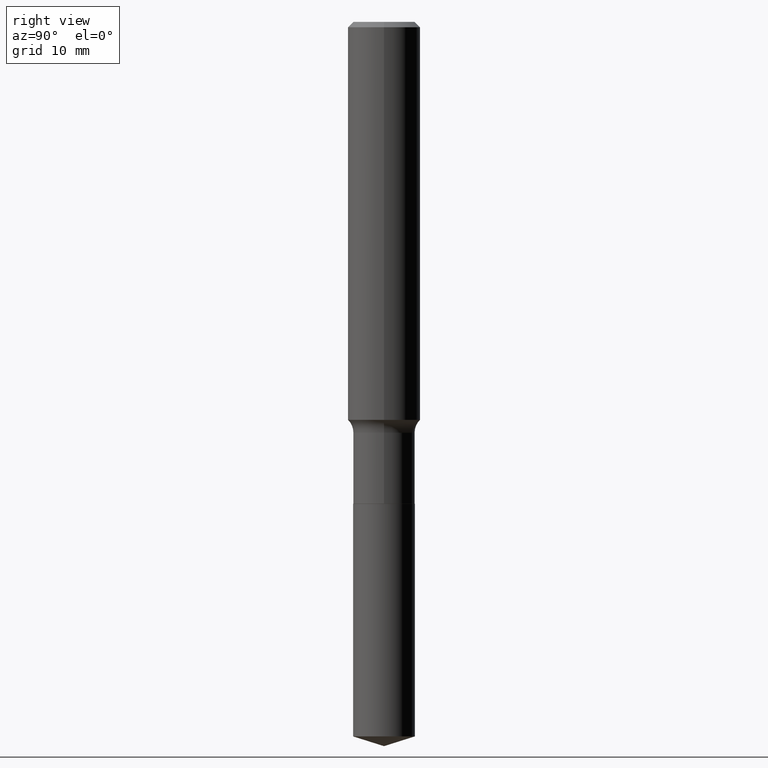
[diagram: clean part render]
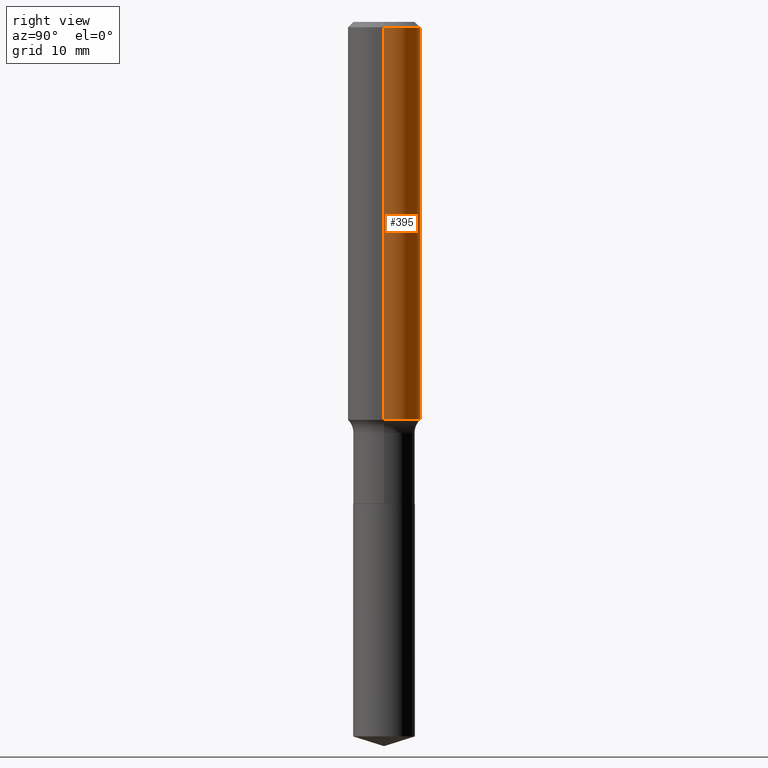
[diagram: same view with one face highlighted and labeled with its STEP entity id]
A machine part, right view. The second image highlights one B-rep face of the part: STEP entity #395.
In plain terms, the highlighted cylindrical surface (edge-blend (fillet) strip) has radius 3.9688 mm, axis along (-0, 0, 1).
Its self-contained STEP definition (entity closure, byte-faithful):
#40 = DIRECTION ( 'NONE',  ( -2.445468806185136597E-29, 3.491481338843145583E-15, 1.000000000000000000 ) ) ;
#53 = EDGE_CURVE ( 'NONE', #139, #360, #463, .T. ) ;
#59 = VERTEX_POINT ( 'NONE', #375 ) ;
#65 = DIRECTION ( 'NONE',  ( -2.445468806185136597E-29, 3.491481338843145583E-15, 1.000000000000000000 ) ) ;
#109 = DIRECTION ( 'NONE',  ( 1.000000000000000000, -6.982962677686266711E-15, 0.000000000000000000 ) ) ;
#115 = CARTESIAN_POINT ( 'NONE',  ( 5.731567514496448931E-31, -8.183159387913672688E-17, -0.02343750000000014225 ) ) ;
#124 = DIRECTION ( 'NONE',  ( -2.445468806185136877E-29, 3.491481338843145188E-15, 1.000000000000000000 ) ) ;
#125 = AXIS2_PLACEMENT_3D ( 'NONE', #115, #40, #109 ) ;
#127 = CIRCLE ( 'NONE', #207, 0.1562500000000002220 ) ;
#139 = VERTEX_POINT ( 'NONE', #419 ) ;
#140 = ORIENTED_EDGE ( 'NONE', *, *, #53, .F. ) ;
#142 = VECTOR ( 'NONE', #394, 39.37007874015748143 ) ;
#144 = ORIENTED_EDGE ( 'NONE', *, *, #240, .T. ) ;
#165 = CARTESIAN_POINT ( 'NONE',  ( -0.1562500000000001110, 1.110223024625157329E-15, -7.685836078523295364E-30 ) ) ;
#207 = AXIS2_PLACEMENT_3D ( 'NONE', #486, #65, #213 ) ;
#210 = CARTESIAN_POINT ( 'NONE',  ( -0.1562500000000000000, -1.928206811352268530E-15, -0.02343750000000014225 ) ) ;
#213 = DIRECTION ( 'NONE',  ( 1.000000000000000000, -6.982962677686265922E-15, 0.000000000000000000 ) ) ;
#217 = DIRECTION ( 'NONE',  ( 1.000000000000000000, -6.982962677686266711E-15, 4.876176775795936353E-29 ) ) ;
#234 = CARTESIAN_POINT ( 'NONE',  ( 0.1562500000000001110, -1.091087918388479962E-15, 7.619026212181155982E-30 ) ) ;
#240 = EDGE_CURVE ( 'NONE', #59, #360, #461, .T. ) ;
#250 = FACE_OUTER_BOUND ( 'NONE', #407, .T. ) ;
#258 = EDGE_CURVE ( 'NONE', #448, #139, #459, .T. ) ;
#262 = CARTESIAN_POINT ( 'NONE',  ( 0.1562500000000002498, -7.086115996464197617E-15, -1.717044284722451630 ) ) ;
#267 = AXIS2_PLACEMENT_3D ( 'NONE', #376, #451, #217 ) ;
#289 = ORIENTED_EDGE ( 'NONE', *, *, #343, .T. ) ;
#290 = VECTOR ( 'NONE', #124, 39.37007874015748143 ) ;
#343 = EDGE_CURVE ( 'NONE', #448, #59, #127, .T. ) ;
#360 = VERTEX_POINT ( 'NONE', #210 ) ;
#367 = CYLINDRICAL_SURFACE ( 'NONE', #267, 0.1562500000000001110 ) ;
#375 = CARTESIAN_POINT ( 'NONE',  ( -0.1562500000000002498, -4.884805053450557958E-15, -1.717044284722451630 ) ) ;
#376 = CARTESIAN_POINT ( 'NONE',  ( 0.000000000000000000, 0.000000000000000000, 0.000000000000000000 ) ) ;
#394 = DIRECTION ( 'NONE',  ( -2.445468806185136877E-29, 3.491481338843145188E-15, 1.000000000000000000 ) ) ;
#395 = ADVANCED_FACE ( 'NONE', ( #250 ), #367, .T. ) ;
#407 = EDGE_LOOP ( 'NONE', ( #289, #144, #140, #477 ) ) ;
#419 = CARTESIAN_POINT ( 'NONE',  ( 0.1562500000000000000, -1.172919512267615999E-15, -0.02343750000000014225 ) ) ;
#448 = VERTEX_POINT ( 'NONE', #262 ) ;
#451 = DIRECTION ( 'NONE',  ( -2.445468806185136597E-29, 3.491481338843145583E-15, 1.000000000000000000 ) ) ;
#459 = LINE ( 'NONE', #234, #142 ) ;
#461 = LINE ( 'NONE', #165, #290 ) ;
#463 = CIRCLE ( 'NONE', #125, 0.1562500000000000000 ) ;
#477 = ORIENTED_EDGE ( 'NONE', *, *, #258, .F. ) ;
#486 = CARTESIAN_POINT ( 'NONE',  ( 4.198978237127225302E-29, -5.995028078075716865E-15, -1.717044284722451630 ) ) ;